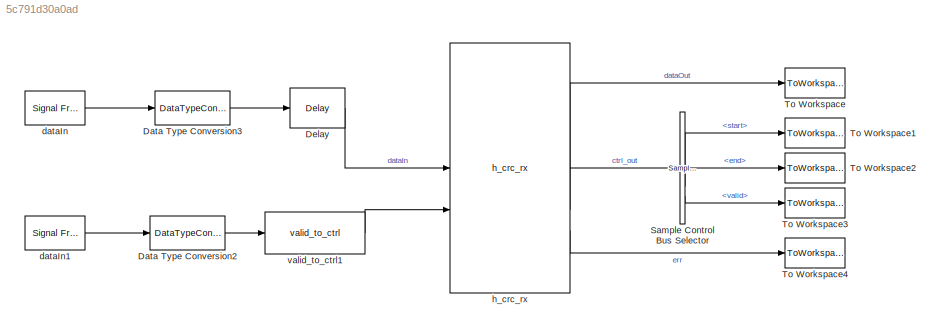
MODEL slx_5c791d30a0ad
KIND model
CONFIG AbsTol = auto
CONFIG EnableMultiTasking = off
CONFIG FixedStep = auto
CONFIG MaxStep = auto
CONFIG MinStep = auto
CONFIG RelTol = 1e-3
CONFIG SampleTimeConstraint = Unconstrained
CONFIG SolverName = VariableStepAuto
CONFIG StartTime = 0.0
CONFIG StopTime = stopTime
BLOCK [DataTypeConversion] Data Type Conversion2
  OutDataTypeStr = boolean
  RndMeth = Floor
  SaturateOnIntegerOverflow = off
BLOCK [DataTypeConversion] Data Type Conversion3
  OutDataTypeStr = boolean
  RndMeth = Floor
  SaturateOnIntegerOverflow = off
BLOCK [Delay] Delay
  DelayLength = 1
  InitialCondition = 0
  InputPortMap = u0
  UseCircularBuffer = on
  UserDataPersistent = on
BLOCK [Reference] Sample Control Bus Selector  REF=whdlutilities/Sample Control
Bus Selector
  SourceBlock = whdlutilities/Sample Control\nBus Selector
BLOCK [ToWorkspace] To Workspace
  MaxDataPoints = inf
  SampleTime = 1/CONST.fs
  Save2DSignal = 2-D array (concatenate along first dimension)
  VariableName = dataOut
BLOCK [ToWorkspace] To Workspace1
  MaxDataPoints = inf
  SampleTime = 1/CONST.fs
  Save2DSignal = 2-D array (concatenate along first dimension)
  VariableName = startOut
BLOCK [ToWorkspace] To Workspace2
  MaxDataPoints = inf
  SampleTime = 1/CONST.fs
  Save2DSignal = 2-D array (concatenate along first dimension)
  VariableName = endOut
BLOCK [ToWorkspace] To Workspace3
  MaxDataPoints = inf
  SampleTime = 1/CONST.fs
  Save2DSignal = 2-D array (concatenate along first dimension)
  VariableName = validOut
BLOCK [ToWorkspace] To Workspace4
  MaxDataPoints = inf
  SampleTime = 1/CONST.fs
  Save2DSignal = 2-D array (concatenate along first dimension)
  VariableName = errOut
BLOCK [Reference] dataIn  REF=dspsrcs4/Signal From
Workspace
  SourceBlock = dspsrcs4/Signal From\nWorkspace
  SourceType = Signal From Workspace
BLOCK [Reference] dataIn1  REF=dspsrcs4/Signal From
Workspace
  SourceBlock = dspsrcs4/Signal From\nWorkspace
  SourceType = Signal From Workspace
BLOCK [Reference] h_crc_rx  REF=HDL_ieee_8021513/h_crc_rx
  SourceBlock = HDL_ieee_8021513/h_crc_rx
  SourceProductName = HDL IEEE 8021513
  SourceType = SubSystem
BLOCK [Reference] valid_to_ctrl1  REF=HDL_ieee_8021513/valid_to_ctrl
  SourceBlock = HDL_ieee_8021513/valid_to_ctrl
  SourceProductName = HDL IEEE 8021513
  SourceType = SubSystem
LINE Data Type Conversion2:1 -> valid_to_ctrl1:1
LINE Data Type Conversion3:1 -> Delay:1
LINE Delay:1 -> h_crc_rx:1
LINE Sample Control Bus Selector:1 -> To Workspace1:1
LINE Sample Control Bus Selector:2 -> To Workspace2:1
LINE Sample Control Bus Selector:3 -> To Workspace3:1
LINE dataIn1:1 -> Data Type Conversion2:1
LINE dataIn:1 -> Data Type Conversion3:1
LINE h_crc_rx:1 -> To Workspace:1
LINE h_crc_rx:2 -> Sample Control Bus Selector:1
LINE h_crc_rx:3 -> To Workspace4:1
LINE valid_to_ctrl1:1 -> h_crc_rx:2
